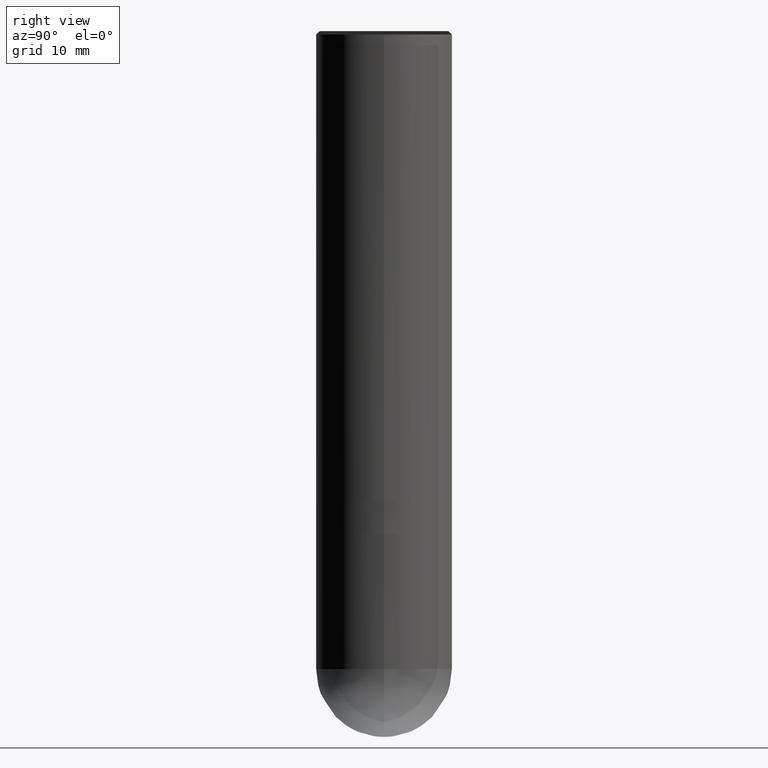
[diagram: clean part render]
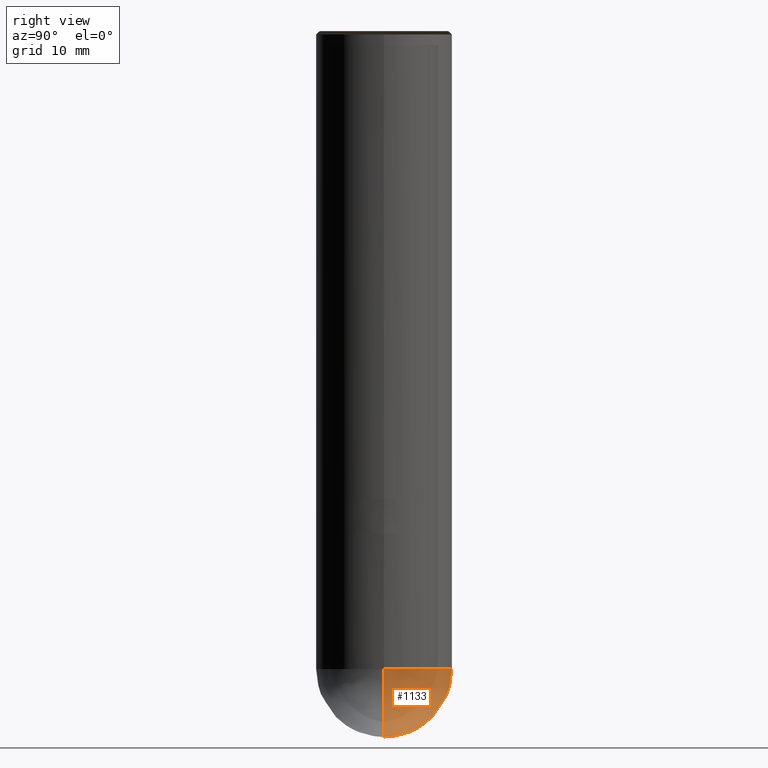
[diagram: same view with one face highlighted and labeled with its STEP entity id]
A machine part, right view. The second image highlights one B-rep face of the part: STEP entity #1133.
In plain terms, the highlighted face is a freeform B-spline surface patch.
Its self-contained STEP definition (entity closure, byte-faithful):
#1060=CARTESIAN_POINT('',(0.0,0.0,-35.0));
#1061=CARTESIAN_POINT('',(10.0,0.0,-35.0));
#1062=CARTESIAN_POINT('',(10.0,10.0,-35.0));
#1063=CARTESIAN_POINT('',(0.0,10.0,-35.0));
#1064=CARTESIAN_POINT('',(-10.0,10.0,-35.0));
#1065=CARTESIAN_POINT('',(-10.0,0.0,-35.0));
#1066=CARTESIAN_POINT('',(10.0,0.0,-25.0));
#1067=CARTESIAN_POINT('',(10.0,10.0,-25.0));
#1068=CARTESIAN_POINT('',(0.0,10.0,-25.0));
#1069=CARTESIAN_POINT('',(-10.0,10.0,-25.0));
#1070=CARTESIAN_POINT('',(-10.0,0.0,-25.0));
#1118=(
BOUNDED_SURFACE()
B_SPLINE_SURFACE(2,2,(
(#1060,#1060,#1060,#1060,#1060),
(#1061,#1062,#1063,#1064,#1065),
(#1066,#1067,#1068,#1069,#1070)
), .UNSPECIFIED.,.F.,.F.,.F.)
B_SPLINE_SURFACE_WITH_KNOTS((3,3),(3,2,3),(
0.0,1.0),(
0.0,0.5,1.0), .UNSPECIFIED.)
GEOMETRIC_REPRESENTATION_ITEM()
RATIONAL_B_SPLINE_SURFACE(((1.0,0.707106781187,1.0,0.707106781187,1.0),
(0.707106781187,0.5,0.707106781187,0.5,0.707106781187),
(1.0,0.707106781187,1.0,0.707106781187,1.0)
))
REPRESENTATION_ITEM('')
SURFACE()
);
#1119=(
BOUNDED_CURVE()
B_SPLINE_CURVE(2,(#1070,#1065,#1060),.UNSPECIFIED.,.F.,.F.)
B_SPLINE_CURVE_WITH_KNOTS((3,3),
(0.0,1.0),.UNSPECIFIED.)
CURVE()
GEOMETRIC_REPRESENTATION_ITEM()
RATIONAL_B_SPLINE_CURVE((1.0,0.707106781187,1.0))
REPRESENTATION_ITEM('')
);
#1120=(
BOUNDED_CURVE()
B_SPLINE_CURVE(2,(#1060,#1061,#1066),.UNSPECIFIED.,.F.,.F.)
B_SPLINE_CURVE_WITH_KNOTS((3,3),
(0.0,1.0),.UNSPECIFIED.)
CURVE()
GEOMETRIC_REPRESENTATION_ITEM()
RATIONAL_B_SPLINE_CURVE((1.0,0.707106781187,1.0))
REPRESENTATION_ITEM('')
);
#1121=(
BOUNDED_CURVE()
B_SPLINE_CURVE(2,(#1066,#1067,#1068,#1069,#1070),.UNSPECIFIED.,.F.,.F.)
B_SPLINE_CURVE_WITH_KNOTS((3,2,3),
(0.0,0.5,1.0),.UNSPECIFIED.)
CURVE()
GEOMETRIC_REPRESENTATION_ITEM()
RATIONAL_B_SPLINE_CURVE((1.0,0.707106781187,1.0,0.707106781187,1.0))
REPRESENTATION_ITEM('')
);
#1122=VERTEX_POINT('',#1060);
#1123=VERTEX_POINT('',#1066);
#1124=VERTEX_POINT('',#1070);
#1125=EDGE_CURVE('',#1124,#1122,#1119,.T.);
#1126=EDGE_CURVE('',#1122,#1123,#1120,.T.);
#1127=EDGE_CURVE('',#1123,#1124,#1121,.T.);
#1128=ORIENTED_EDGE('',*,*,#1125,.T.);
#1129=ORIENTED_EDGE('',*,*,#1126,.T.);
#1130=ORIENTED_EDGE('',*,*,#1127,.T.);
#1131=EDGE_LOOP('',(#1128,#1129,#1130));
#1132=FACE_OUTER_BOUND('',#1131,.T.);
#1133=ADVANCED_FACE('',(#1132),#1118,.T.);